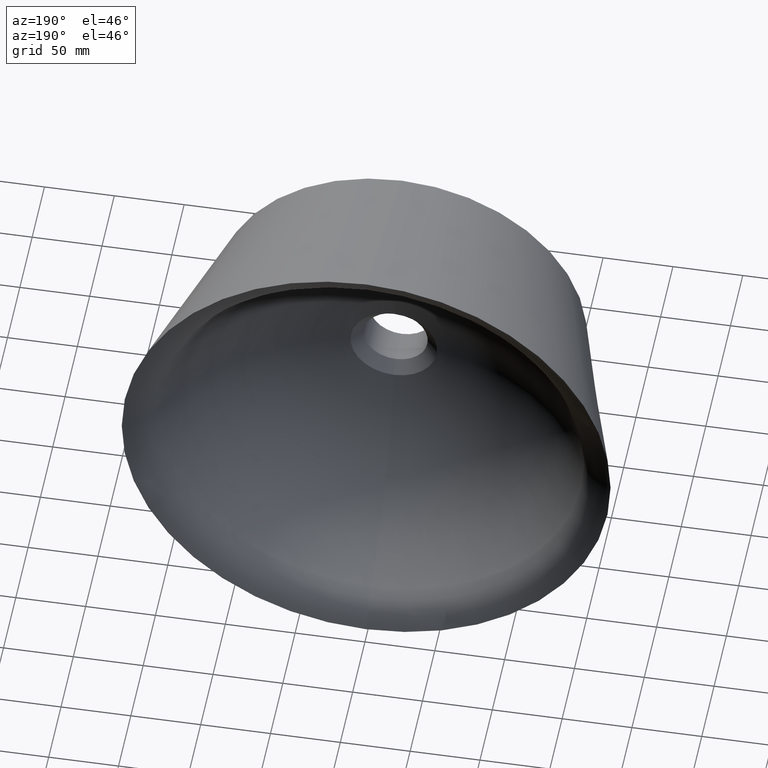
[diagram: clean part render]
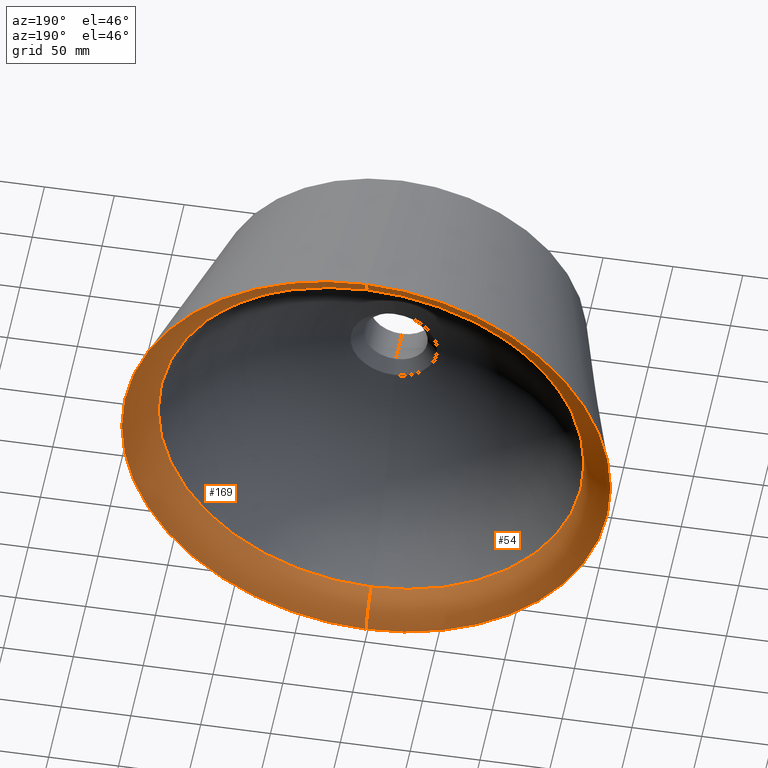
[diagram: same view with one multi-face feature highlighted, each face labeled with its STEP entity id]
A machine part, auxiliary view. The highlighted faces form ONE feature: a constant-radius fillet chain: 2 tangent blend faces with common blend radius 37.0768 mm. The faces share edges in the B-rep.
Their STEP definitions:
[1] entity #54 (Torus):
#9 = DIRECTION ( 'NONE',  ( -0.0000000000000000000, -1.000000000000000000, -0.0000000000000000000 ) ) ;
#13 = EDGE_CURVE ( 'NONE', #34, #154, #67, .T. ) ;
#15 = DIRECTION ( 'NONE',  ( 0.0000000000000000000, 0.0000000000000000000, -1.000000000000000000 ) ) ;
#18 = DIRECTION ( 'NONE',  ( 0.0000000000000000000, 0.0000000000000000000, -1.000000000000000000 ) ) ;
#34 = VERTEX_POINT ( 'NONE', #177 ) ;
#54 = ADVANCED_FACE ( 'NONE', ( #268 ), #239, .T. ) ;
#67 = CIRCLE ( 'NONE', #146, 37.07675705908988600 ) ;
#73 = DIRECTION ( 'NONE',  ( -1.224646799147353200E-016, 0.0000000000000000000, -1.000000000000000000 ) ) ;
#81 = AXIS2_PLACEMENT_3D ( 'NONE', #302, #192, #73 ) ;
#98 = EDGE_CURVE ( 'NONE', #107, #34, #122, .T. ) ;
#100 = AXIS2_PLACEMENT_3D ( 'NONE', #159, #286, #18 ) ;
#107 = VERTEX_POINT ( 'NONE', #143 ) ;
#112 = CARTESIAN_POINT ( 'NONE',  ( 0.0000000000000000000, 109.6688146533680300, -186.2424755290236600 ) ) ;
#122 = CIRCLE ( 'NONE', #100, 152.4839111358805900 ) ;
#135 = AXIS2_PLACEMENT_3D ( 'NONE', #285, #9, #15 ) ;
#140 = CIRCLE ( 'NONE', #237, 175.0000000000000000 ) ;
#143 = CARTESIAN_POINT ( 'NONE',  ( 1.867389336940256900E-014, 124.9999999999999900, 152.4839111358806700 ) ) ;
#144 = DIRECTION ( 'NONE',  ( -0.0000000000000000000, -1.000000000000000000, -0.0000000000000000000 ) ) ;
#145 = ORIENTED_EDGE ( 'NONE', *, *, #227, .F. ) ;
#146 = AXIS2_PLACEMENT_3D ( 'NONE', #112, #201, #214 ) ;
#150 = EDGE_CURVE ( 'NONE', #247, #154, #140, .T. ) ;
#151 = EDGE_LOOP ( 'NONE', ( #145, #320, #346, #295 ) ) ;
#154 = VERTEX_POINT ( 'NONE', #292 ) ;
#159 = CARTESIAN_POINT ( 'NONE',  ( 0.0000000000000000000, 124.9999999999999900, 0.0000000000000000000 ) ) ;
#177 = CARTESIAN_POINT ( 'NONE',  ( 0.0000000000000000000, 124.9999999999999900, -152.4839111358806700 ) ) ;
#192 = DIRECTION ( 'NONE',  ( 1.000000000000000000, 0.0000000000000000000, -1.224646799147353200E-016 ) ) ;
#196 = DIRECTION ( 'NONE',  ( 0.0000000000000000000, 0.0000000000000000000, -1.000000000000000000 ) ) ;
#201 = DIRECTION ( 'NONE',  ( -1.000000000000000000, 0.0000000000000000000, 0.0000000000000000000 ) ) ;
#214 = DIRECTION ( 'NONE',  ( 0.0000000000000000000, 0.0000000000000000000, 1.000000000000000000 ) ) ;
#227 = EDGE_CURVE ( 'NONE', #107, #247, #228, .T. ) ;
#228 = CIRCLE ( 'NONE', #81, 37.07675705908988600 ) ;
#237 = AXIS2_PLACEMENT_3D ( 'NONE', #342, #144, #196 ) ;
#239 = TOROIDAL_SURFACE ( 'NONE', #135, 186.2424755290236600, 37.07675705908987900 ) ;
#247 = VERTEX_POINT ( 'NONE', #252 ) ;
#252 = CARTESIAN_POINT ( 'NONE',  ( 2.143131898507863200E-014, 144.9999999999999400, 174.9999999999996000 ) ) ;
#268 = FACE_OUTER_BOUND ( 'NONE', #151, .T. ) ;
#285 = CARTESIAN_POINT ( 'NONE',  ( 0.0000000000000000000, 109.6688146533680300, 0.0000000000000000000 ) ) ;
#286 = DIRECTION ( 'NONE',  ( -0.0000000000000000000, -1.000000000000000000, -0.0000000000000000000 ) ) ;
#292 = CARTESIAN_POINT ( 'NONE',  ( 0.0000000000000000000, 144.9999999999999400, -174.9999999999996000 ) ) ;
#295 = ORIENTED_EDGE ( 'NONE', *, *, #150, .F. ) ;
#302 = CARTESIAN_POINT ( 'NONE',  ( 2.280812515218980900E-014, 109.6688146533680300, 186.2424755290236600 ) ) ;
#320 = ORIENTED_EDGE ( 'NONE', *, *, #98, .T. ) ;
#342 = CARTESIAN_POINT ( 'NONE',  ( 0.0000000000000000000, 144.9999999999999400, 0.0000000000000000000 ) ) ;
#346 = ORIENTED_EDGE ( 'NONE', *, *, #13, .T. ) ;
[2] entity #169 (Torus):
#13 = EDGE_CURVE ( 'NONE', #34, #154, #67, .T. ) ;
#19 = CIRCLE ( 'NONE', #277, 152.4839111358805900 ) ;
#31 = FACE_OUTER_BOUND ( 'NONE', #350, .T. ) ;
#34 = VERTEX_POINT ( 'NONE', #177 ) ;
#62 = CARTESIAN_POINT ( 'NONE',  ( 0.0000000000000000000, 124.9999999999999900, 0.0000000000000000000 ) ) ;
#65 = DIRECTION ( 'NONE',  ( 0.0000000000000000000, 0.0000000000000000000, -1.000000000000000000 ) ) ;
#67 = CIRCLE ( 'NONE', #146, 37.07675705908988600 ) ;
#68 = DIRECTION ( 'NONE',  ( -0.0000000000000000000, -1.000000000000000000, -0.0000000000000000000 ) ) ;
#73 = DIRECTION ( 'NONE',  ( -1.224646799147353200E-016, 0.0000000000000000000, -1.000000000000000000 ) ) ;
#81 = AXIS2_PLACEMENT_3D ( 'NONE', #302, #192, #73 ) ;
#88 = ORIENTED_EDGE ( 'NONE', *, *, #13, .F. ) ;
#95 = ORIENTED_EDGE ( 'NONE', *, *, #106, .F. ) ;
#106 = EDGE_CURVE ( 'NONE', #154, #247, #152, .T. ) ;
#107 = VERTEX_POINT ( 'NONE', #143 ) ;
#112 = CARTESIAN_POINT ( 'NONE',  ( 0.0000000000000000000, 109.6688146533680300, -186.2424755290236600 ) ) ;
#114 = DIRECTION ( 'NONE',  ( -0.0000000000000000000, -1.000000000000000000, -0.0000000000000000000 ) ) ;
#129 = ORIENTED_EDGE ( 'NONE', *, *, #349, .T. ) ;
#143 = CARTESIAN_POINT ( 'NONE',  ( 1.867389336940256900E-014, 124.9999999999999900, 152.4839111358806700 ) ) ;
#146 = AXIS2_PLACEMENT_3D ( 'NONE', #112, #201, #214 ) ;
#147 = CARTESIAN_POINT ( 'NONE',  ( 0.0000000000000000000, 144.9999999999999400, 0.0000000000000000000 ) ) ;
#152 = CIRCLE ( 'NONE', #260, 175.0000000000000000 ) ;
#154 = VERTEX_POINT ( 'NONE', #292 ) ;
#169 = ADVANCED_FACE ( 'NONE', ( #31 ), #316, .T. ) ;
#171 = CARTESIAN_POINT ( 'NONE',  ( 0.0000000000000000000, 109.6688146533680300, 0.0000000000000000000 ) ) ;
#173 = DIRECTION ( 'NONE',  ( -0.0000000000000000000, -1.000000000000000000, -0.0000000000000000000 ) ) ;
#177 = CARTESIAN_POINT ( 'NONE',  ( 0.0000000000000000000, 124.9999999999999900, -152.4839111358806700 ) ) ;
#192 = DIRECTION ( 'NONE',  ( 1.000000000000000000, 0.0000000000000000000, -1.224646799147353200E-016 ) ) ;
#201 = DIRECTION ( 'NONE',  ( -1.000000000000000000, 0.0000000000000000000, 0.0000000000000000000 ) ) ;
#214 = DIRECTION ( 'NONE',  ( 0.0000000000000000000, 0.0000000000000000000, 1.000000000000000000 ) ) ;
#223 = DIRECTION ( 'NONE',  ( 0.0000000000000000000, 0.0000000000000000000, -1.000000000000000000 ) ) ;
#227 = EDGE_CURVE ( 'NONE', #107, #247, #228, .T. ) ;
#228 = CIRCLE ( 'NONE', #81, 37.07675705908988600 ) ;
#247 = VERTEX_POINT ( 'NONE', #252 ) ;
#252 = CARTESIAN_POINT ( 'NONE',  ( 2.143131898507863200E-014, 144.9999999999999400, 174.9999999999996000 ) ) ;
#260 = AXIS2_PLACEMENT_3D ( 'NONE', #147, #68, #223 ) ;
#277 = AXIS2_PLACEMENT_3D ( 'NONE', #62, #114, #303 ) ;
#280 = ORIENTED_EDGE ( 'NONE', *, *, #227, .T. ) ;
#292 = CARTESIAN_POINT ( 'NONE',  ( 0.0000000000000000000, 144.9999999999999400, -174.9999999999996000 ) ) ;
#302 = CARTESIAN_POINT ( 'NONE',  ( 2.280812515218980900E-014, 109.6688146533680300, 186.2424755290236600 ) ) ;
#303 = DIRECTION ( 'NONE',  ( 0.0000000000000000000, 0.0000000000000000000, -1.000000000000000000 ) ) ;
#316 = TOROIDAL_SURFACE ( 'NONE', #347, 186.2424755290236600, 37.07675705908987900 ) ;
#347 = AXIS2_PLACEMENT_3D ( 'NONE', #171, #173, #65 ) ;
#349 = EDGE_CURVE ( 'NONE', #34, #107, #19, .T. ) ;
#350 = EDGE_LOOP ( 'NONE', ( #129, #280, #95, #88 ) ) ;